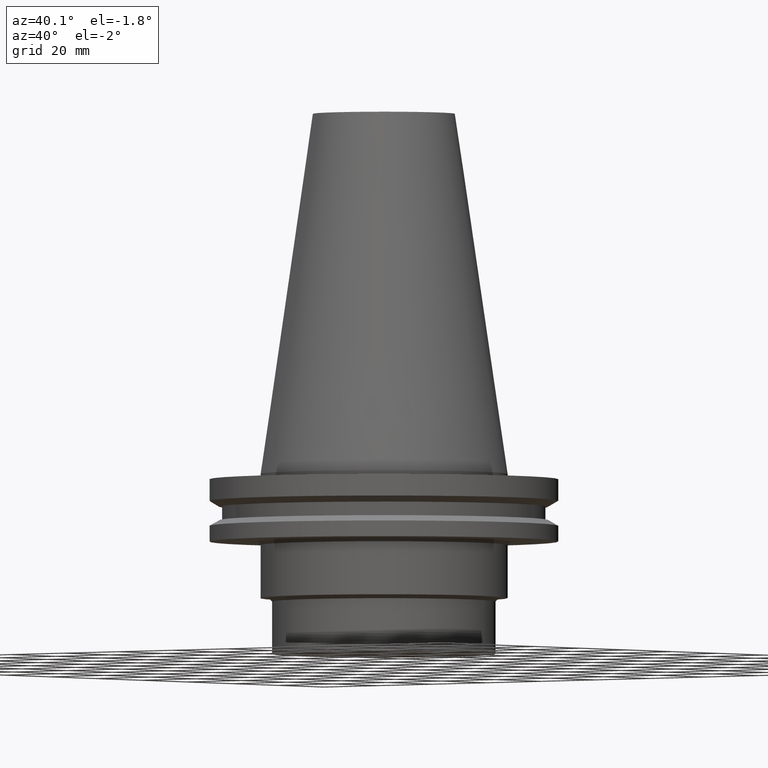
[diagram: clean part render]
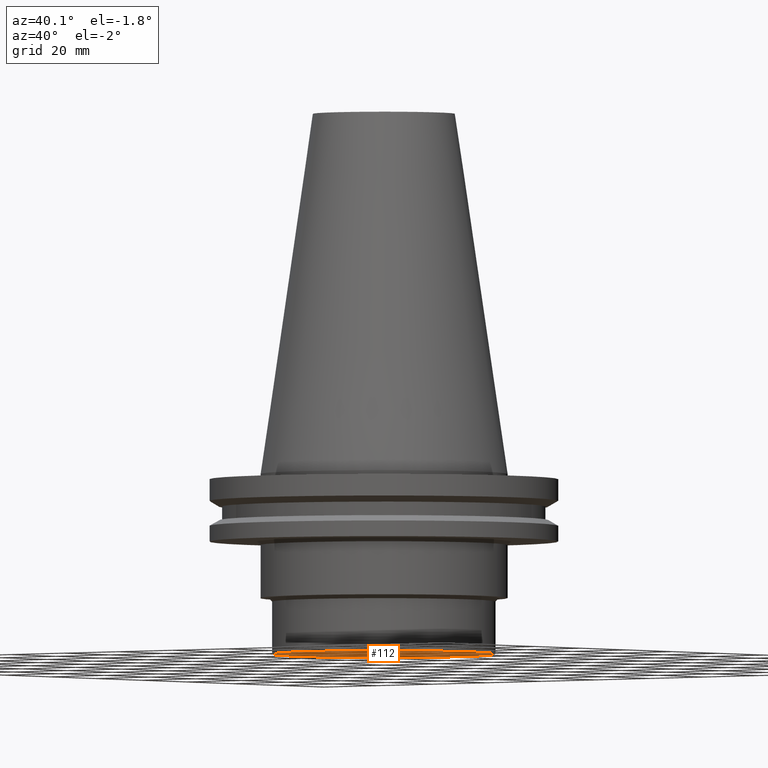
[diagram: same view with one face highlighted and labeled with its STEP entity id]
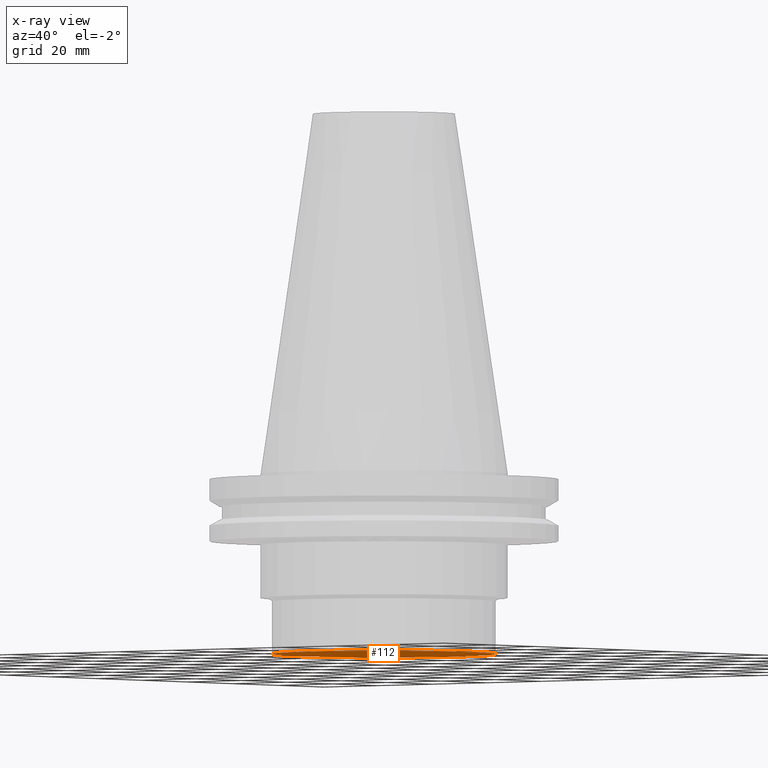
[diagram: x-ray of the same camera — body ghosted, the highlighted face saturated]
A machine part, auxiliary view. The second image highlights one B-rep face of the part: STEP entity #112.
The next image is the same camera in x-ray: the body ghosted, the highlighted face saturated — about 0% of this face is hidden behind the body in this view.
In plain terms, the highlighted planar face has unit normal (0, -0, -1).
Its self-contained STEP definition (entity closure, byte-faithful):
#112=ADVANCED_FACE('Unnamed[1]',(#248),#249,.T.);
#129=EDGE_CURVE('Unnamed[1]',#275,#275,#276,.T.);
#248=FACE_OUTER_BOUND('',#418,.T.);
#249=PLANE('',#419);
#275=VERTEX_POINT('',#452);
#276=CIRCLE('',#453,31.4999999999999);
#418=EDGE_LOOP('',(#582));
#419=AXIS2_PLACEMENT_3D('',#583,#584,#585);
#452=CARTESIAN_POINT('',(3.11060286983428E-015,31.5,-50.8));
#453=AXIS2_PLACEMENT_3D('',#613,#614,#615);
#582=ORIENTED_EDGE('',*,*,#129,.T.);
#583=CARTESIAN_POINT('',(3.11060286983428E-015,15.75,-50.8));
#584=DIRECTION('',(6.12323399573677E-017,-5.54242687475838E-016,-1.0));
#585=DIRECTION('',(2.91104239276366E-032,1.0,-5.54242687475838E-016));
#613=CARTESIAN_POINT('',(3.11060286983428E-015,7.57662372790171E-014,-50.8));
#614=DIRECTION('',(6.12323399573677E-017,9.31673031619414E-016,-1.0));
#615=DIRECTION('',(-6.18756725319997E-032,1.0,9.31673031619414E-016));